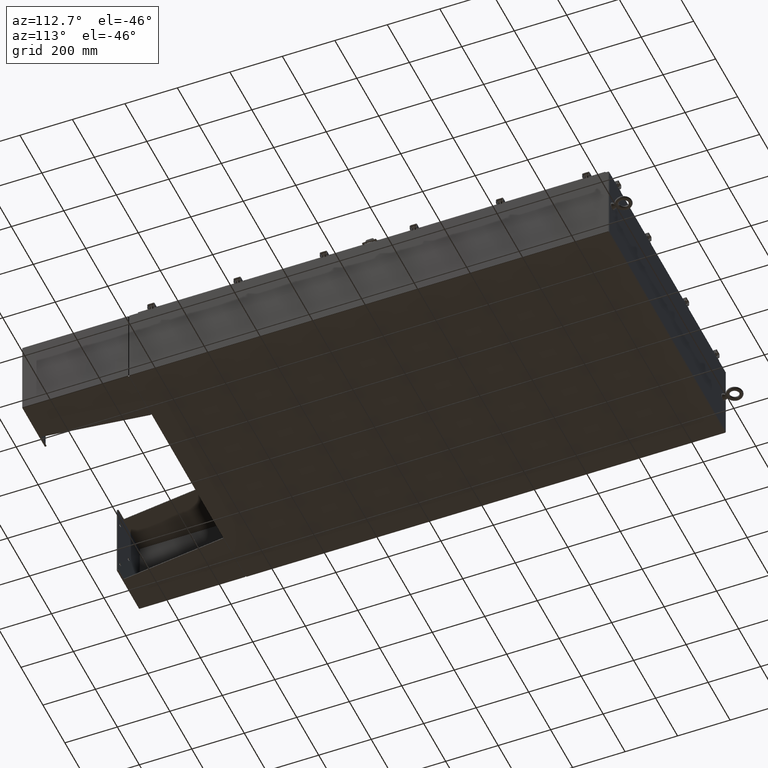
[diagram: clean part render]
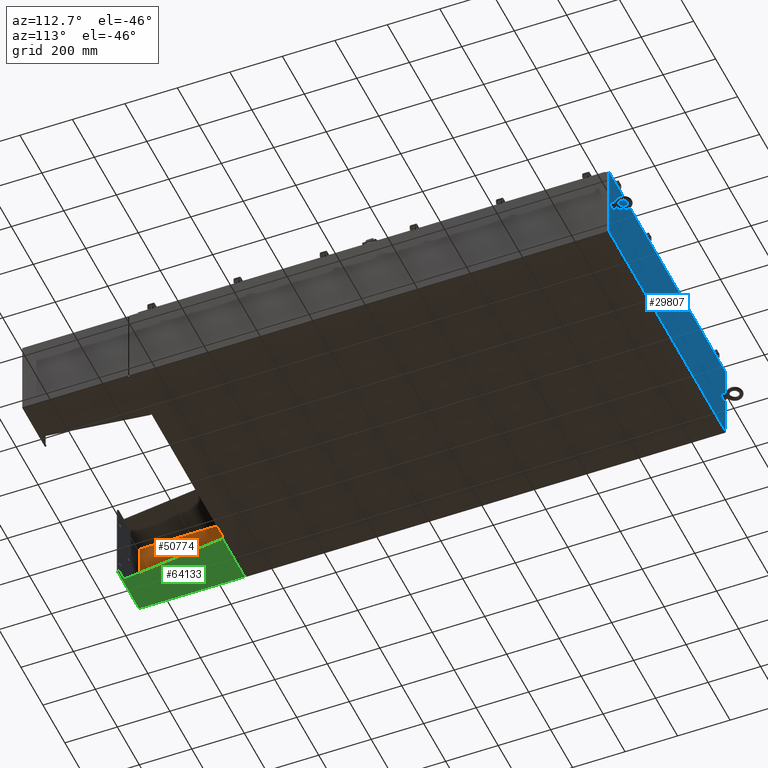
[diagram: same view with three faces highlighted in distinct colors, each labeled with its STEP entity id]
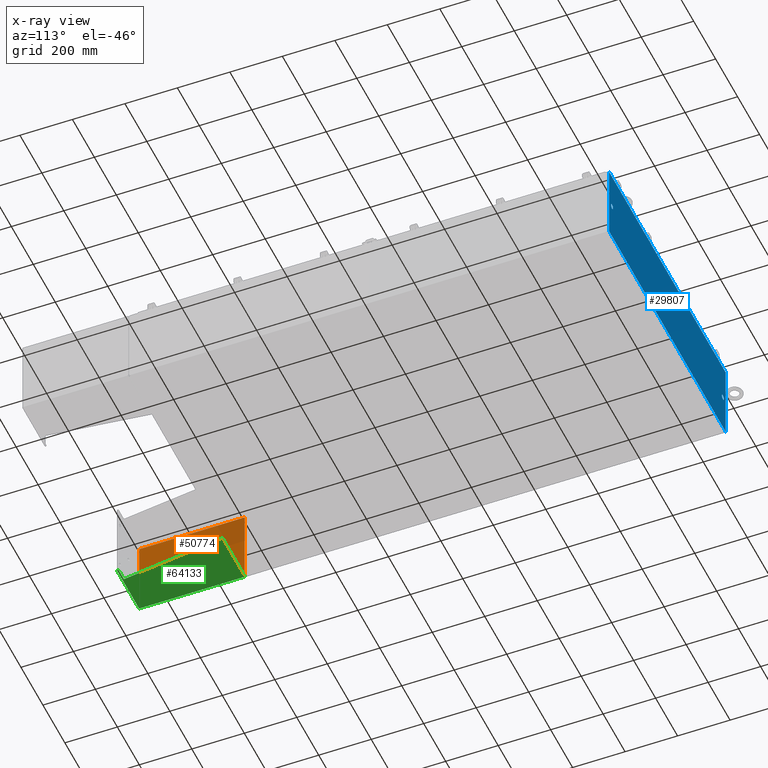
[diagram: x-ray of the same camera — body ghosted, the three highlighted faces saturated]
A machine part, auxiliary view with three faces highlighted in distinct colors.
The next image is the same camera in x-ray (body ghosted, the three faces saturated) — at least one of them is partly hidden behind the body in this view.
Their STEP definitions:

[orange] entity #50774 — the highlighted planar face has unit normal (-1, 0, -0).
#2612 = VERTEX_POINT ( 'NONE', #26259 ) ;
#3369 = DIRECTION ( 'NONE',  ( -0.0000000000000000000, 1.000000000000000000, -0.0000000000000000000 ) ) ;
#5293 = DIRECTION ( 'NONE',  ( 1.000000000000000000, 0.0000000000000000000, 0.0000000000000000000 ) ) ;
#7856 = LINE ( 'NONE', #74596, #53260 ) ;
#8844 = EDGE_CURVE ( 'NONE', #72761, #64364, #47100, .T. ) ;
#9936 = PLANE ( 'NONE',  #32659 ) ;
#10054 = ORIENTED_EDGE ( 'NONE', *, *, #56368, .F. ) ;
#12532 = ORIENTED_EDGE ( 'NONE', *, *, #62265, .F. ) ;
#14332 = LINE ( 'NONE', #46784, #30167 ) ;
#15813 = DIRECTION ( 'NONE',  ( -1.000000000000000000, 0.0000000000000000000, -0.0000000000000000000 ) ) ;
#19178 = ORIENTED_EDGE ( 'NONE', *, *, #31850, .F. ) ;
#21560 = ORIENTED_EDGE ( 'NONE', *, *, #8844, .T. ) ;
#23892 = CARTESIAN_POINT ( 'NONE',  ( -5.857000000000000200, -8.000000000000000000, 1.365923996832131600E-016 ) ) ;
#26259 = CARTESIAN_POINT ( 'NONE',  ( -5.857000000000000200, 7.857000000000001100, 1.365923996832131600E-016 ) ) ;
#27778 = FACE_OUTER_BOUND ( 'NONE', #41591, .T. ) ;
#30167 = VECTOR ( 'NONE', #5293, 39.37007874015748100 ) ;
#31302 = VECTOR ( 'NONE', #36145, 39.37007874015748100 ) ;
#31850 = EDGE_CURVE ( 'NONE', #2612, #56405, #14332, .T. ) ;
#32659 = AXIS2_PLACEMENT_3D ( 'NONE', #63047, #51417, #15813 ) ;
#36145 = DIRECTION ( 'NONE',  ( 1.000000000000000000, 0.0000000000000000000, 0.0000000000000000000 ) ) ;
#38555 = LINE ( 'NONE', #72795, #40393 ) ;
#40393 = VECTOR ( 'NONE', #43364, 39.37007874015748100 ) ;
#41591 = EDGE_LOOP ( 'NONE', ( #19178, #12532, #21560, #10054 ) ) ;
#43364 = DIRECTION ( 'NONE',  ( -0.0000000000000000000, -1.000000000000000000, -0.0000000000000000000 ) ) ;
#46784 = CARTESIAN_POINT ( 'NONE',  ( -5.857000000000000200, 7.857000000000001100, 1.365923996832131600E-016 ) ) ;
#47100 = LINE ( 'NONE', #54028, #31302 ) ;
#50774 = ADVANCED_FACE ( 'NONE', ( #27778 ), #9936, .F. ) ;
#50907 = CARTESIAN_POINT ( 'NONE',  ( 5.857000000000000200, -7.999999999999997300, 1.365923996832131600E-016 ) ) ;
#51417 = DIRECTION ( 'NONE',  ( 0.0000000000000000000, 0.0000000000000000000, -1.000000000000000000 ) ) ;
#53260 = VECTOR ( 'NONE', #3369, 39.37007874015748100 ) ;
#54028 = CARTESIAN_POINT ( 'NONE',  ( -6.000000000000000900, -7.999999999999999100, 0.0000000000000000000 ) ) ;
#56368 = EDGE_CURVE ( 'NONE', #56405, #64364, #38555, .T. ) ;
#56405 = VERTEX_POINT ( 'NONE', #73052 ) ;
#62265 = EDGE_CURVE ( 'NONE', #72761, #2612, #7856, .T. ) ;
#63047 = CARTESIAN_POINT ( 'NONE',  ( 5.999999999999996400, 8.000000000000001800, 0.0000000000000000000 ) ) ;
#64364 = VERTEX_POINT ( 'NONE', #50907 ) ;
#72761 = VERTEX_POINT ( 'NONE', #23892 ) ;
#72795 = CARTESIAN_POINT ( 'NONE',  ( 5.857000000000000200, 8.000000000000001800, 1.365923996832131600E-016 ) ) ;
#73052 = CARTESIAN_POINT ( 'NONE',  ( 5.857000000000000200, 7.857000000000001100, 1.365923996832131600E-016 ) ) ;
#74596 = CARTESIAN_POINT ( 'NONE',  ( -5.857000000000000200, -7.999999999999999100, 1.365923996832131600E-016 ) ) ;

[blue] entity #29807 — the highlighted planar face has unit normal (0, -1, 0).
#549 = CARTESIAN_POINT ( 'NONE',  ( -19.88530000000000100, 0.0000000000000000000, 0.3750000000000007800 ) ) ;
#595 = EDGE_CURVE ( 'NONE', #21901, #72272, #34664, .T. ) ;
#731 = DIRECTION ( 'NONE',  ( -0.0000000000000000000, -0.0000000000000000000, 1.000000000000000000 ) ) ;
#775 = DIRECTION ( 'NONE',  ( 0.0000000000000000000, -0.0000000000000000000, -1.000000000000000000 ) ) ;
#1222 = DIRECTION ( 'NONE',  ( 0.0000000000000000000, 0.0000000000000000000, -1.000000000000000000 ) ) ;
#1984 = ORIENTED_EDGE ( 'NONE', *, *, #10872, .T. ) ;
#2192 = CARTESIAN_POINT ( 'NONE',  ( -19.88530000000000100, 0.0000000000000000000, -0.3750000000000009400 ) ) ;
#2354 = ORIENTED_EDGE ( 'NONE', *, *, #8210, .T. ) ;
#3089 = CARTESIAN_POINT ( 'NONE',  ( 19.67454999999998200, 0.0000000000000000000, 5.925300000000000000 ) ) ;
#3756 = VECTOR ( 'NONE', #25502, 39.37007874015748100 ) ;
#3965 = VECTOR ( 'NONE', #731, 39.37007874015748100 ) ;
#4313 = VECTOR ( 'NONE', #60706, 39.37007874015748100 ) ;
#4696 = CARTESIAN_POINT ( 'NONE',  ( 20.92530000000000400, 0.0000000000000000000, -5.925300000000000000 ) ) ;
#4804 = VERTEX_POINT ( 'NONE', #58338 ) ;
#4904 = FACE_BOUND ( 'NONE', #42174, .T. ) ;
#5392 = CARTESIAN_POINT ( 'NONE',  ( -19.63720000000000400, -7.171100983368691200E-016, 5.912300000000000100 ) ) ;
#6562 = AXIS2_PLACEMENT_3D ( 'NONE', #25078, #66538, #31046 ) ;
#6884 = EDGE_CURVE ( 'NONE', #22501, #61874, #51073, .T. ) ;
#8210 = EDGE_CURVE ( 'NONE', #61874, #30801, #42582, .T. ) ;
#9515 = CIRCLE ( 'NONE', #21125, 0.01867499999999949400 ) ;
#10288 = EDGE_CURVE ( 'NONE', #30343, #69509, #21897, .T. ) ;
#10434 = CARTESIAN_POINT ( 'NONE',  ( 19.88530000000000100, 0.0000000000000000000, 0.0000000000000000000 ) ) ;
#10872 = EDGE_CURVE ( 'NONE', #35604, #4804, #21168, .T. ) ;
#10884 = DIRECTION ( 'NONE',  ( 1.000000000000000000, 0.0000000000000000000, 0.0000000000000000000 ) ) ;
#11238 = ORIENTED_EDGE ( 'NONE', *, *, #22908, .F. ) ;
#11453 = VERTEX_POINT ( 'NONE', #30915 ) ;
#11522 = VERTEX_POINT ( 'NONE', #2192 ) ;
#12741 = DIRECTION ( 'NONE',  ( 0.0000000000000000000, 0.0000000000000000000, 1.000000000000000000 ) ) ;
#13422 = DIRECTION ( 'NONE',  ( 1.302171834120001500E-013, 0.0000000000000000000, -1.000000000000000000 ) ) ;
#14125 = VECTOR ( 'NONE', #61693, 39.37007874015748100 ) ;
#15092 = ORIENTED_EDGE ( 'NONE', *, *, #45531, .T. ) ;
#16221 = VECTOR ( 'NONE', #10884, 39.37007874015748100 ) ;
#16833 = FACE_OUTER_BOUND ( 'NONE', #74821, .T. ) ;
#16897 = CARTESIAN_POINT ( 'NONE',  ( 19.88530000000000100, 0.0000000000000000000, -0.3750000000000008300 ) ) ;
#17972 = VERTEX_POINT ( 'NONE', #3089 ) ;
#18257 = DIRECTION ( 'NONE',  ( 1.000000000000000000, 0.0000000000000000000, 0.0000000000000000000 ) ) ;
#18796 = CARTESIAN_POINT ( 'NONE',  ( -20.92530000000000400, 0.0000000000000000000, 5.925300000000000000 ) ) ;
#19423 = ORIENTED_EDGE ( 'NONE', *, *, #36925, .F. ) ;
#20130 = CARTESIAN_POINT ( 'NONE',  ( 19.63720000000000400, 0.0000000000000000000, 0.0000000000000000000 ) ) ;
#20174 = DIRECTION ( 'NONE',  ( 1.000000000000000000, 0.0000000000000000000, 0.0000000000000000000 ) ) ;
#20597 = ORIENTED_EDGE ( 'NONE', *, *, #32379, .F. ) ;
#20700 = AXIS2_PLACEMENT_3D ( 'NONE', #23956, #65456, #29947 ) ;
#20841 = ORIENTED_EDGE ( 'NONE', *, *, #6884, .T. ) ;
#21125 = AXIS2_PLACEMENT_3D ( 'NONE', #72210, #36817, #1222 ) ;
#21168 = LINE ( 'NONE', #18796, #35169 ) ;
#21897 = LINE ( 'NONE', #60767, #4313 ) ;
#21901 = VERTEX_POINT ( 'NONE', #61135 ) ;
#22501 = VERTEX_POINT ( 'NONE', #36476 ) ;
#22908 = EDGE_CURVE ( 'NONE', #72560, #4804, #43860, .T. ) ;
#23956 = CARTESIAN_POINT ( 'NONE',  ( 19.88530000000000100, 0.0000000000000000000, 0.0000000000000000000 ) ) ;
#23958 = CARTESIAN_POINT ( 'NONE',  ( -20.92530000000000400, 0.0000000000000000000, -5.925300000000000000 ) ) ;
#24495 = VECTOR ( 'NONE', #13422, 39.37007874015748100 ) ;
#25078 = CARTESIAN_POINT ( 'NONE',  ( 19.65587500000000500, 0.0000000000000000000, 5.874950000000000100 ) ) ;
#25104 = CARTESIAN_POINT ( 'NONE',  ( 19.67455000000076700, 0.0000000000000000000, 2.561964485898667500E-012 ) ) ;
#25502 = DIRECTION ( 'NONE',  ( 0.0000000000000000000, 0.0000000000000000000, -1.000000000000000000 ) ) ;
#25534 = CARTESIAN_POINT ( 'NONE',  ( -19.67455000000000400, 0.0000000000000000000, 5.874950000000000100 ) ) ;
#26628 = DIRECTION ( 'NONE',  ( 0.0000000000000000000, 1.000000000000000000, 0.0000000000000000000 ) ) ;
#26684 = VERTEX_POINT ( 'NONE', #62332 ) ;
#28045 = VECTOR ( 'NONE', #59161, 39.37007874015748100 ) ;
#29807 = ADVANCED_FACE ( 'NONE', ( #31938, #4904, #16833 ), #42078, .F. ) ;
#29947 = DIRECTION ( 'NONE',  ( 0.0000000000000000000, 0.0000000000000000000, 1.000000000000000000 ) ) ;
#30343 = VERTEX_POINT ( 'NONE', #5392 ) ;
#30392 = CARTESIAN_POINT ( 'NONE',  ( -20.92530000000000400, 0.0000000000000000000, 5.925300000000000000 ) ) ;
#30801 = VERTEX_POINT ( 'NONE', #52729 ) ;
#30915 = CARTESIAN_POINT ( 'NONE',  ( 19.67455000000000400, 0.0000000000000000000, 5.874950000000000100 ) ) ;
#31046 = DIRECTION ( 'NONE',  ( 0.0000000000000000000, 0.0000000000000000000, -1.000000000000000000 ) ) ;
#31938 = FACE_BOUND ( 'NONE', #65655, .T. ) ;
#32213 = ORIENTED_EDGE ( 'NONE', *, *, #39611, .T. ) ;
#32229 = EDGE_CURVE ( 'NONE', #11522, #37367, #67174, .T. ) ;
#32379 = EDGE_CURVE ( 'NONE', #17972, #11453, #40314, .T. ) ;
#32456 = DIRECTION ( 'NONE',  ( 0.0000000000000000000, 1.000000000000000000, 0.0000000000000000000 ) ) ;
#33689 = LINE ( 'NONE', #71728, #3965 ) ;
#34078 = ORIENTED_EDGE ( 'NONE', *, *, #595, .F. ) ;
#34664 = CIRCLE ( 'NONE', #38667, 0.3750000000000008300 ) ;
#35169 = VECTOR ( 'NONE', #20174, 39.37007874015748100 ) ;
#35604 = VERTEX_POINT ( 'NONE', #30392 ) ;
#36144 = DIRECTION ( 'NONE',  ( 0.0000000000000000000, 1.000000000000000000, 0.0000000000000000000 ) ) ;
#36344 = DIRECTION ( 'NONE',  ( 0.0000000000000000000, -1.000000000000000000, 0.0000000000000000000 ) ) ;
#36476 = CARTESIAN_POINT ( 'NONE',  ( 20.92530000000000400, 0.0000000000000000000, 5.925300000000000000 ) ) ;
#36817 = DIRECTION ( 'NONE',  ( -0.0000000000000000000, 1.000000000000000000, -0.0000000000000000000 ) ) ;
#36923 = AXIS2_PLACEMENT_3D ( 'NONE', #67940, #32456, #73874 ) ;
#36925 = EDGE_CURVE ( 'NONE', #72272, #21901, #65827, .T. ) ;
#37367 = VERTEX_POINT ( 'NONE', #549 ) ;
#38667 = AXIS2_PLACEMENT_3D ( 'NONE', #10434, #36144, #12741 ) ;
#39611 = EDGE_CURVE ( 'NONE', #30343, #26684, #73764, .T. ) ;
#39681 = ORIENTED_EDGE ( 'NONE', *, *, #10288, .F. ) ;
#40314 = LINE ( 'NONE', #25104, #24495 ) ;
#42078 = PLANE ( 'NONE',  #50156 ) ;
#42174 = EDGE_LOOP ( 'NONE', ( #45879, #71816 ) ) ;
#42582 = LINE ( 'NONE', #23958, #56463 ) ;
#43120 = ORIENTED_EDGE ( 'NONE', *, *, #62645, .F. ) ;
#43456 = CARTESIAN_POINT ( 'NONE',  ( -19.67455000000000400, -0.0000000000000000000, 0.0000000000000000000 ) ) ;
#43860 = LINE ( 'NONE', #43456, #28045 ) ;
#44813 = VECTOR ( 'NONE', #18257, 39.37007874015748100 ) ;
#44915 = CIRCLE ( 'NONE', #6562, 0.01867499999999949400 ) ;
#45396 = VERTEX_POINT ( 'NONE', #46655 ) ;
#45531 = EDGE_CURVE ( 'NONE', #17972, #22501, #60545, .T. ) ;
#45608 = EDGE_CURVE ( 'NONE', #69509, #72560, #9515, .T. ) ;
#45879 = ORIENTED_EDGE ( 'NONE', *, *, #66199, .F. ) ;
#46655 = CARTESIAN_POINT ( 'NONE',  ( 19.63720000000000400, 0.0000000000000000000, 5.874950000000000100 ) ) ;
#50156 = AXIS2_PLACEMENT_3D ( 'NONE', #71770, #36344, #775 ) ;
#51073 = LINE ( 'NONE', #66441, #3756 ) ;
#52361 = CARTESIAN_POINT ( 'NONE',  ( -19.63720000000000400, -7.171100983368691200E-016, 5.912300000000000100 ) ) ;
#52729 = CARTESIAN_POINT ( 'NONE',  ( -20.92530000000000400, 0.0000000000000000000, -5.925300000000000000 ) ) ;
#53862 = CARTESIAN_POINT ( 'NONE',  ( -20.92530000000000400, 0.0000000000000000000, 5.925300000000000000 ) ) ;
#55906 = LINE ( 'NONE', #20130, #14125 ) ;
#56463 = VECTOR ( 'NONE', #66685, 39.37007874015748100 ) ;
#58338 = CARTESIAN_POINT ( 'NONE',  ( -19.67455000000000400, 0.0000000000000000000, 5.925300000000000000 ) ) ;
#59161 = DIRECTION ( 'NONE',  ( 0.0000000000000000000, 0.0000000000000000000, 1.000000000000000000 ) ) ;
#60545 = LINE ( 'NONE', #53862, #44813 ) ;
#60706 = DIRECTION ( 'NONE',  ( 0.0000000000000000000, 0.0000000000000000000, -1.000000000000000000 ) ) ;
#60767 = CARTESIAN_POINT ( 'NONE',  ( -19.63720000000000400, -0.0000000000000000000, 0.0000000000000000000 ) ) ;
#61135 = CARTESIAN_POINT ( 'NONE',  ( 19.88530000000000100, 0.0000000000000000000, 0.3750000000000008300 ) ) ;
#61381 = AXIS2_PLACEMENT_3D ( 'NONE', #62129, #26628, #68076 ) ;
#61693 = DIRECTION ( 'NONE',  ( 0.0000000000000000000, 0.0000000000000000000, 1.000000000000000000 ) ) ;
#61874 = VERTEX_POINT ( 'NONE', #4696 ) ;
#62129 = CARTESIAN_POINT ( 'NONE',  ( -19.88530000000000100, 0.0000000000000000000, -5.656012487845070000E-017 ) ) ;
#62332 = CARTESIAN_POINT ( 'NONE',  ( 19.63720000000000400, 0.0000000000000000000, 5.912300000000000100 ) ) ;
#62645 = EDGE_CURVE ( 'NONE', #11453, #45396, #44915, .T. ) ;
#65456 = DIRECTION ( 'NONE',  ( 0.0000000000000000000, 1.000000000000000000, 0.0000000000000000000 ) ) ;
#65524 = CIRCLE ( 'NONE', #61381, 0.3750000000000008300 ) ;
#65655 = EDGE_LOOP ( 'NONE', ( #34078, #19423 ) ) ;
#65827 = CIRCLE ( 'NONE', #20700, 0.3750000000000008300 ) ;
#66199 = EDGE_CURVE ( 'NONE', #37367, #11522, #65524, .T. ) ;
#66441 = CARTESIAN_POINT ( 'NONE',  ( 20.92530000000000400, 0.0000000000000000000, 5.925300000000000000 ) ) ;
#66538 = DIRECTION ( 'NONE',  ( -0.0000000000000000000, 1.000000000000000000, -0.0000000000000000000 ) ) ;
#66685 = DIRECTION ( 'NONE',  ( -1.000000000000000000, -0.0000000000000000000, -0.0000000000000000000 ) ) ;
#66911 = ORIENTED_EDGE ( 'NONE', *, *, #76237, .F. ) ;
#67174 = CIRCLE ( 'NONE', #36923, 0.3750000000000008300 ) ;
#67940 = CARTESIAN_POINT ( 'NONE',  ( -19.88530000000000100, 0.0000000000000000000, -5.656012487845070000E-017 ) ) ;
#68076 = DIRECTION ( 'NONE',  ( 0.0000000000000000000, 0.0000000000000000000, 1.000000000000000000 ) ) ;
#69509 = VERTEX_POINT ( 'NONE', #76881 ) ;
#70127 = EDGE_CURVE ( 'NONE', #30801, #35604, #33689, .T. ) ;
#71728 = CARTESIAN_POINT ( 'NONE',  ( -20.92530000000000400, 0.0000000000000000000, 5.925300000000000000 ) ) ;
#71770 = CARTESIAN_POINT ( 'NONE',  ( 0.0000000000000000000, 0.0000000000000000000, 0.0000000000000000000 ) ) ;
#71816 = ORIENTED_EDGE ( 'NONE', *, *, #32229, .F. ) ;
#72073 = ORIENTED_EDGE ( 'NONE', *, *, #70127, .T. ) ;
#72210 = CARTESIAN_POINT ( 'NONE',  ( -19.65587500000000500, 0.0000000000000000000, 5.874950000000000100 ) ) ;
#72272 = VERTEX_POINT ( 'NONE', #16897 ) ;
#72560 = VERTEX_POINT ( 'NONE', #25534 ) ;
#73764 = LINE ( 'NONE', #52361, #16221 ) ;
#73874 = DIRECTION ( 'NONE',  ( 0.0000000000000000000, 0.0000000000000000000, 1.000000000000000000 ) ) ;
#74821 = EDGE_LOOP ( 'NONE', ( #11238, #76697, #39681, #32213, #66911, #43120, #20597, #15092, #20841, #2354, #72073, #1984 ) ) ;
#76237 = EDGE_CURVE ( 'NONE', #45396, #26684, #55906, .T. ) ;
#76697 = ORIENTED_EDGE ( 'NONE', *, *, #45608, .F. ) ;
#76881 = CARTESIAN_POINT ( 'NONE',  ( -19.63720000000000400, -0.0000000000000000000, 5.874950000000000100 ) ) ;

[green] entity #64133 — the highlighted planar face has unit normal (-0, -0, 1).
#6745 = CARTESIAN_POINT ( 'NONE',  ( 6.000000000000022200, -7.749999999999999100, 6.052216497445950700 ) ) ;
#8465 = VECTOR ( 'NONE', #10039, 39.37007874015748100 ) ;
#9411 = DIRECTION ( 'NONE',  ( 0.0000000000000000000, -1.000000000000000000, 0.0000000000000000000 ) ) ;
#10039 = DIRECTION ( 'NONE',  ( 4.399772607369798900E-016, 0.9922942345449394800, 0.1239038017531047700 ) ) ;
#13704 = VERTEX_POINT ( 'NONE', #73054 ) ;
#17415 = EDGE_CURVE ( 'NONE', #55412, #13704, #40048, .T. ) ;
#17631 = CARTESIAN_POINT ( 'NONE',  ( 6.000000000000013300, 7.857000000000001100, 0.03900000000001561900 ) ) ;
#17835 = VERTEX_POINT ( 'NONE', #23177 ) ;
#18978 = DIRECTION ( 'NONE',  ( 3.550958521948298200E-015, 0.0000000000000000000, 1.000000000000000000 ) ) ;
#20996 = ORIENTED_EDGE ( 'NONE', *, *, #55981, .T. ) ;
#21209 = ORIENTED_EDGE ( 'NONE', *, *, #46454, .T. ) ;
#22342 = CARTESIAN_POINT ( 'NONE',  ( 6.000000000000029300, -7.749999999999999100, 8.001000000000015400 ) ) ;
#22348 = LINE ( 'NONE', #42081, #65968 ) ;
#23177 = CARTESIAN_POINT ( 'NONE',  ( 6.000000000000000900, -7.999999999999993800, 0.03899999999999890400 ) ) ;
#24353 = EDGE_CURVE ( 'NONE', #34175, #55412, #28372, .T. ) ;
#26224 = LINE ( 'NONE', #30147, #38333 ) ;
#26861 = LINE ( 'NONE', #17631, #56569 ) ;
#27493 = CARTESIAN_POINT ( 'NONE',  ( 6.000000000000029300, -7.999999999999999100, 8.001000000000015400 ) ) ;
#28372 = LINE ( 'NONE', #22342, #44177 ) ;
#29476 = AXIS2_PLACEMENT_3D ( 'NONE', #30736, #54570, #18978 ) ;
#30147 = CARTESIAN_POINT ( 'NONE',  ( 5.999999999999999100, -7.999999999999999100, 0.03900000000001453000 ) ) ;
#30736 = CARTESIAN_POINT ( 'NONE',  ( 6.000000000000029300, -7.999999999999999100, 8.001000000000015400 ) ) ;
#34175 = VERTEX_POINT ( 'NONE', #69717 ) ;
#34859 = LINE ( 'NONE', #74423, #48760 ) ;
#36142 = ORIENTED_EDGE ( 'NONE', *, *, #48904, .F. ) ;
#38333 = VECTOR ( 'NONE', #65878, 39.37007874015748100 ) ;
#40048 = LINE ( 'NONE', #6745, #8465 ) ;
#41368 = DIRECTION ( 'NONE',  ( 0.0000000000000000000, 0.0000000000000000000, 1.000000000000000000 ) ) ;
#41558 = EDGE_LOOP ( 'NONE', ( #74863, #20996, #21209, #36142, #64787, #51378 ) ) ;
#42081 = CARTESIAN_POINT ( 'NONE',  ( 6.000000000000029300, -7.999999999999999100, 8.001000000000015400 ) ) ;
#44177 = VECTOR ( 'NONE', #69553, 39.37007874015748100 ) ;
#45265 = VERTEX_POINT ( 'NONE', #27493 ) ;
#46454 = EDGE_CURVE ( 'NONE', #45265, #17835, #22348, .T. ) ;
#46833 = CARTESIAN_POINT ( 'NONE',  ( 6.000000000000013300, 7.857000000000001100, 0.03900000000001453000 ) ) ;
#47631 = EDGE_CURVE ( 'NONE', #68276, #13704, #26861, .T. ) ;
#48626 = PLANE ( 'NONE',  #29476 ) ;
#48760 = VECTOR ( 'NONE', #9411, 39.37007874015748100 ) ;
#48904 = EDGE_CURVE ( 'NONE', #68276, #17835, #26224, .T. ) ;
#51378 = ORIENTED_EDGE ( 'NONE', *, *, #17415, .F. ) ;
#52964 = FACE_OUTER_BOUND ( 'NONE', #41558, .T. ) ;
#54570 = DIRECTION ( 'NONE',  ( -1.000000000000000000, 0.0000000000000000000, 3.550958521948298200E-015 ) ) ;
#55412 = VERTEX_POINT ( 'NONE', #76561 ) ;
#55981 = EDGE_CURVE ( 'NONE', #34175, #45265, #34859, .T. ) ;
#56569 = VECTOR ( 'NONE', #41368, 39.37007874015748100 ) ;
#64133 = ADVANCED_FACE ( 'NONE', ( #52964 ), #48626, .F. ) ;
#64787 = ORIENTED_EDGE ( 'NONE', *, *, #47631, .T. ) ;
#65842 = DIRECTION ( 'NONE',  ( -3.550958521948298200E-015, 0.0000000000000000000, -1.000000000000000000 ) ) ;
#65878 = DIRECTION ( 'NONE',  ( -0.0000000000000000000, -1.000000000000000000, 0.0000000000000000000 ) ) ;
#65968 = VECTOR ( 'NONE', #65842, 39.37007874015748100 ) ;
#68276 = VERTEX_POINT ( 'NONE', #46833 ) ;
#69553 = DIRECTION ( 'NONE',  ( -3.550958521948298200E-015, -0.0000000000000000000, -1.000000000000000000 ) ) ;
#69717 = CARTESIAN_POINT ( 'NONE',  ( 6.000000000000029300, -7.749999999999999100, 8.001000000000031400 ) ) ;
#73054 = CARTESIAN_POINT ( 'NONE',  ( 6.000000000000013300, 7.857000000000001100, 8.001000000000013700 ) ) ;
#74423 = CARTESIAN_POINT ( 'NONE',  ( 6.000000000000029300, -7.999999999999999100, 8.001000000000015400 ) ) ;
#74863 = ORIENTED_EDGE ( 'NONE', *, *, #24353, .F. ) ;
#76561 = CARTESIAN_POINT ( 'NONE',  ( 6.000000000000021300, -7.749999999999999100, 6.052216497445950700 ) ) ;